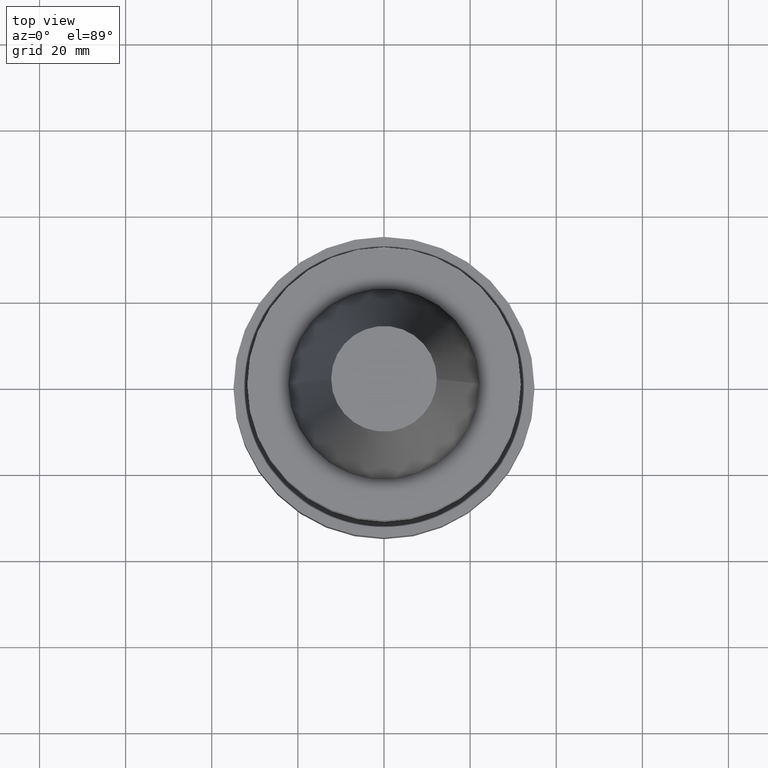
[diagram: clean part render]
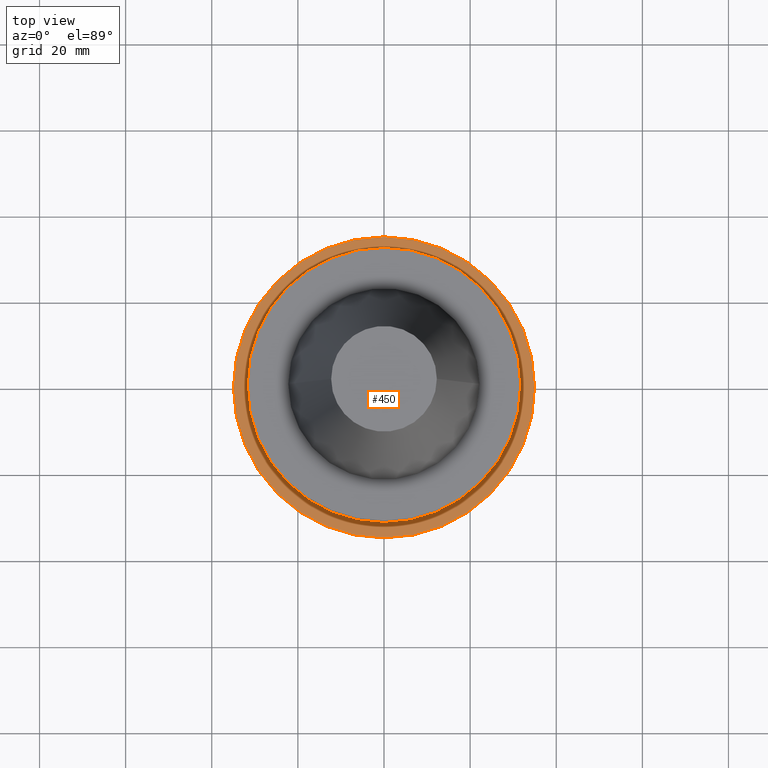
[diagram: same view with one face highlighted and labeled with its STEP entity id]
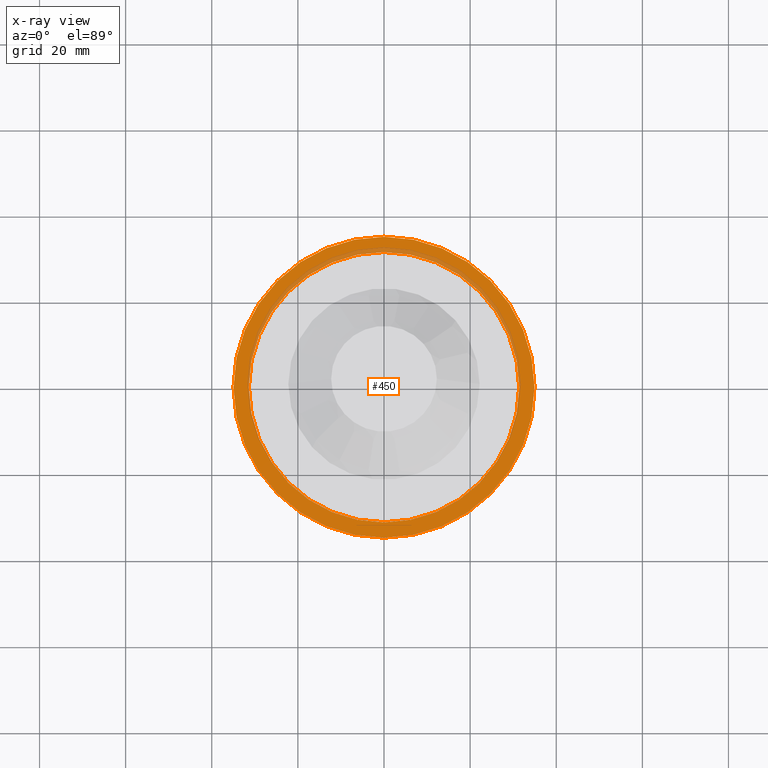
[diagram: x-ray of the same camera — body ghosted, the highlighted face saturated]
A machine part, top view. The second image highlights one B-rep face of the part: STEP entity #450.
The next image is the same camera in x-ray: the body ghosted, the highlighted face saturated — about 12% of this face is hidden behind the body in this view.
In plain terms, the highlighted planar face has unit normal (0, 0, -1).
Its self-contained STEP definition (entity closure, byte-faithful):
#4 = AXIS2_PLACEMENT_3D ( 'NONE', #192, #180, #283 ) ;
#26 = CIRCLE ( 'NONE', #1062, 34.95000000000000284 ) ;
#68 = EDGE_LOOP ( 'NONE', ( #664, #980 ) ) ;
#180 = DIRECTION ( 'NONE',  ( -0.000000000000000000, -0.000000000000000000, 1.000000000000000000 ) ) ;
#192 = CARTESIAN_POINT ( 'NONE',  ( 0.000000000000000000, 0.000000000000000000, -45.00000000000000000 ) ) ;
#197 = CARTESIAN_POINT ( 'NONE',  ( 34.95000000000000284, 0.000000000000000000, -45.00000000000000000 ) ) ;
#203 = DIRECTION ( 'NONE',  ( 0.000000000000000000, 0.000000000000000000, -1.000000000000000000 ) ) ;
#262 = CARTESIAN_POINT ( 'NONE',  ( 0.000000000000000000, 0.000000000000000000, -45.00000000000000000 ) ) ;
#263 = EDGE_CURVE ( 'NONE', #1084, #1088, #861, .T. ) ;
#283 = DIRECTION ( 'NONE',  ( 1.000000000000000000, 0.000000000000000000, 0.000000000000000000 ) ) ;
#292 = FACE_BOUND ( 'NONE', #1194, .T. ) ;
#296 = CARTESIAN_POINT ( 'NONE',  ( 0.000000000000000000, 34.95000000000000284, -45.00000000000000000 ) ) ;
#303 = CARTESIAN_POINT ( 'NONE',  ( 0.000000000000000000, 0.000000000000000000, -45.00000000000000000 ) ) ;
#317 = EDGE_CURVE ( 'NONE', #774, #877, #330, .T. ) ;
#330 = CIRCLE ( 'NONE', #4, 34.95000000000000284 ) ;
#398 = EDGE_CURVE ( 'NONE', #1088, #1084, #960, .T. ) ;
#413 = AXIS2_PLACEMENT_3D ( 'NONE', #296, #203, #498 ) ;
#450 = ADVANCED_FACE ( 'NONE', ( #292, #671 ), #860, .F. ) ;
#498 = DIRECTION ( 'NONE',  ( -1.000000000000000000, 0.000000000000000000, -0.000000000000000000 ) ) ;
#522 = ORIENTED_EDGE ( 'NONE', *, *, #398, .T. ) ;
#548 = DIRECTION ( 'NONE',  ( -1.000000000000000000, 0.000000000000000000, 0.000000000000000000 ) ) ;
#566 = EDGE_CURVE ( 'NONE', #877, #774, #26, .T. ) ;
#569 = DIRECTION ( 'NONE',  ( 0.000000000000000000, 0.000000000000000000, -1.000000000000000000 ) ) ;
#633 = DIRECTION ( 'NONE',  ( 0.000000000000000000, 0.000000000000000000, -1.000000000000000000 ) ) ;
#664 = ORIENTED_EDGE ( 'NONE', *, *, #317, .T. ) ;
#671 = FACE_OUTER_BOUND ( 'NONE', #68, .T. ) ;
#677 = DIRECTION ( 'NONE',  ( -1.000000000000000000, 0.000000000000000000, 0.000000000000000000 ) ) ;
#708 = CARTESIAN_POINT ( 'NONE',  ( -34.95000000000000284, 4.280140563019999423E-15, -45.00000000000000000 ) ) ;
#748 = AXIS2_PLACEMENT_3D ( 'NONE', #262, #633, #548 ) ;
#774 = VERTEX_POINT ( 'NONE', #197 ) ;
#802 = DIRECTION ( 'NONE',  ( 1.000000000000000000, 0.000000000000000000, 0.000000000000000000 ) ) ;
#860 = PLANE ( 'NONE',  #413 ) ;
#861 = CIRCLE ( 'NONE', #748, 31.39999999999999858 ) ;
#877 = VERTEX_POINT ( 'NONE', #708 ) ;
#895 = DIRECTION ( 'NONE',  ( -0.000000000000000000, -0.000000000000000000, 1.000000000000000000 ) ) ;
#960 = CIRCLE ( 'NONE', #1120, 31.39999999999999858 ) ;
#980 = ORIENTED_EDGE ( 'NONE', *, *, #566, .T. ) ;
#1001 = CARTESIAN_POINT ( 'NONE',  ( -31.39999999999999858, 3.845390949322688543E-15, -45.00000000000000000 ) ) ;
#1062 = AXIS2_PLACEMENT_3D ( 'NONE', #1070, #895, #802 ) ;
#1070 = CARTESIAN_POINT ( 'NONE',  ( 0.000000000000000000, 0.000000000000000000, -45.00000000000000000 ) ) ;
#1084 = VERTEX_POINT ( 'NONE', #1001 ) ;
#1088 = VERTEX_POINT ( 'NONE', #1190 ) ;
#1120 = AXIS2_PLACEMENT_3D ( 'NONE', #303, #569, #677 ) ;
#1147 = ORIENTED_EDGE ( 'NONE', *, *, #263, .T. ) ;
#1190 = CARTESIAN_POINT ( 'NONE',  ( 31.39999999999999858, 0.000000000000000000, -45.00000000000000000 ) ) ;
#1194 = EDGE_LOOP ( 'NONE', ( #522, #1147 ) ) ;